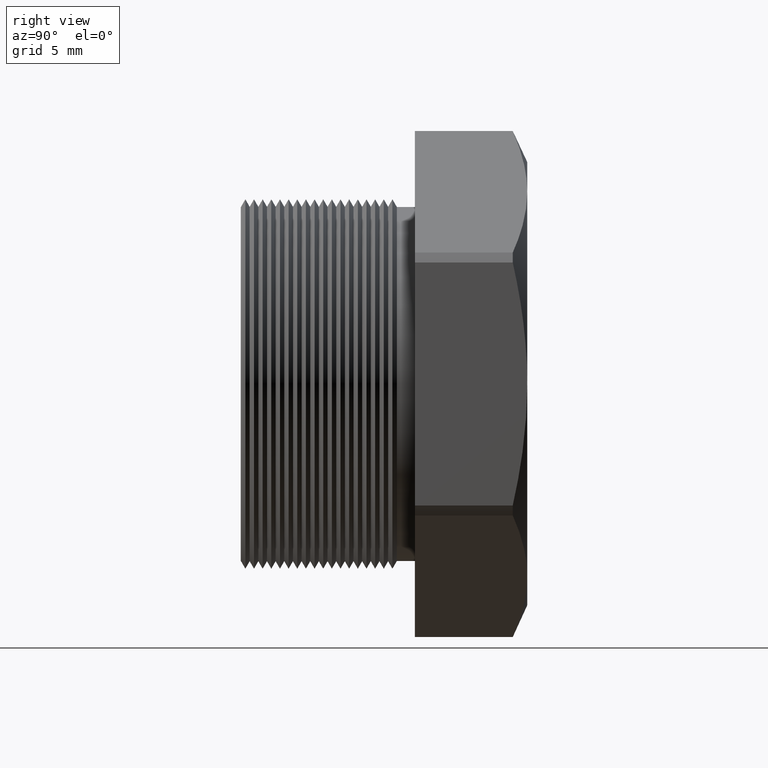
[diagram: clean part render]
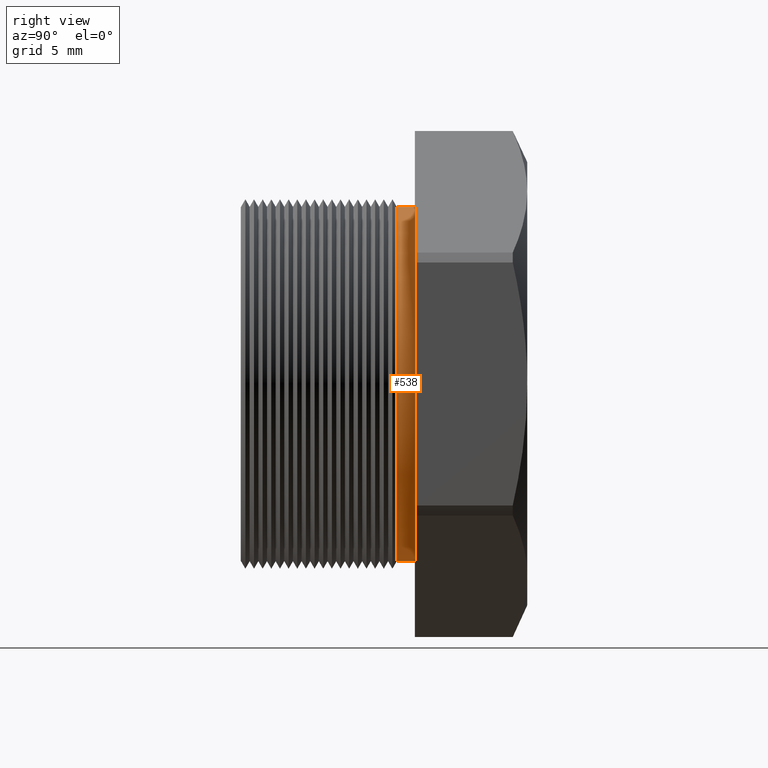
[diagram: same view with one face highlighted and labeled with its STEP entity id]
A machine part, right view. The second image highlights one B-rep face of the part: STEP entity #538.
In plain terms, the highlighted cylindrical surface (partial cylindrical patch) has radius 8.001 mm, axis along (-0, -1, -0).
Its self-contained STEP definition (entity closure, byte-faithful):
#456 = EDGE_CURVE ( 'NONE', #458, #467, #2386, .T. ) ;
#458 = VERTEX_POINT ( 'NONE', #2381 ) ;
#467 = VERTEX_POINT ( 'NONE', #2431 ) ;
#535 = EDGE_LOOP ( 'NONE', ( #575, #566, #557, #553 ) ) ;
#538 = ADVANCED_FACE ( 'NONE', ( #2560 ), #2559, .T. ) ;
#547 = EDGE_CURVE ( 'NONE', #571, #458, #2543, .T. ) ;
#553 = ORIENTED_EDGE ( 'NONE', *, *, #547, .F. ) ;
#557 = ORIENTED_EDGE ( 'NONE', *, *, #456, .F. ) ;
#565 = VERTEX_POINT ( 'NONE', #2578 ) ;
#566 = ORIENTED_EDGE ( 'NONE', *, *, #572, .T. ) ;
#567 = EDGE_CURVE ( 'NONE', #571, #565, #2573, .T. ) ;
#571 = VERTEX_POINT ( 'NONE', #2567 ) ;
#572 = EDGE_CURVE ( 'NONE', #565, #467, #2631, .T. ) ;
#575 = ORIENTED_EDGE ( 'NONE', *, *, #567, .T. ) ;
#2381 = CARTESIAN_POINT ( 'NONE',  ( 0.0000000000000000000, 0.1755072448100088400, -0.3150000000000000000 ) ) ;
#2382 = DIRECTION ( 'NONE',  ( 0.0000000000000000000, 0.0000000000000000000, -1.000000000000000000 ) ) ;
#2383 = DIRECTION ( 'NONE',  ( 0.0000000000000000000, -1.000000000000000000, 0.0000000000000000000 ) ) ;
#2384 = CARTESIAN_POINT ( 'NONE',  ( 0.0000000000000000000, 0.1755072448100088400, 0.0000000000000000000 ) ) ;
#2385 = AXIS2_PLACEMENT_3D ( 'NONE', #2384, #2383, #2382 ) ;
#2386 = CIRCLE ( 'NONE', #2385, 0.3150000000000000000 ) ;
#2431 = CARTESIAN_POINT ( 'NONE',  ( 3.857637417314162700E-017, 0.1755072448100088400, 0.3150000000000000000 ) ) ;
#2540 = DIRECTION ( 'NONE',  ( -0.0000000000000000000, -1.000000000000000000, -0.0000000000000000000 ) ) ;
#2541 = VECTOR ( 'NONE', #2540, 39.37007874015748100 ) ;
#2542 = CARTESIAN_POINT ( 'NONE',  ( 0.0000000000000000000, 0.0000000000000000000, -0.3150000000000000000 ) ) ;
#2543 = LINE ( 'NONE', #2542, #2541 ) ;
#2555 = DIRECTION ( 'NONE',  ( 0.0000000000000000000, 0.0000000000000000000, -1.000000000000000000 ) ) ;
#2556 = DIRECTION ( 'NONE',  ( -0.0000000000000000000, -1.000000000000000000, -0.0000000000000000000 ) ) ;
#2557 = CARTESIAN_POINT ( 'NONE',  ( 0.0000000000000000000, 0.0000000000000000000, 0.0000000000000000000 ) ) ;
#2558 = AXIS2_PLACEMENT_3D ( 'NONE', #2557, #2556, #2555 ) ;
#2559 = CYLINDRICAL_SURFACE ( 'NONE', #2558, 0.3150000000000000000 ) ;
#2560 = FACE_OUTER_BOUND ( 'NONE', #535, .T. ) ;
#2567 = CARTESIAN_POINT ( 'NONE',  ( 0.0000000000000000000, 0.2075548905829479300, -0.3150000000000000000 ) ) ;
#2569 = DIRECTION ( 'NONE',  ( 0.0000000000000000000, 0.0000000000000000000, -1.000000000000000000 ) ) ;
#2570 = DIRECTION ( 'NONE',  ( -0.0000000000000000000, -1.000000000000000000, -0.0000000000000000000 ) ) ;
#2571 = CARTESIAN_POINT ( 'NONE',  ( 0.0000000000000000000, 0.2075548905829479300, 0.0000000000000000000 ) ) ;
#2572 = AXIS2_PLACEMENT_3D ( 'NONE', #2571, #2570, #2569 ) ;
#2573 = CIRCLE ( 'NONE', #2572, 0.3150000000000000000 ) ;
#2578 = CARTESIAN_POINT ( 'NONE',  ( 3.857637417314162700E-017, 0.2075548905829479300, 0.3150000000000000000 ) ) ;
#2628 = DIRECTION ( 'NONE',  ( -0.0000000000000000000, -1.000000000000000000, -0.0000000000000000000 ) ) ;
#2629 = VECTOR ( 'NONE', #2628, 39.37007874015748100 ) ;
#2630 = CARTESIAN_POINT ( 'NONE',  ( 3.857637417314162700E-017, 0.0000000000000000000, 0.3150000000000000000 ) ) ;
#2631 = LINE ( 'NONE', #2630, #2629 ) ;